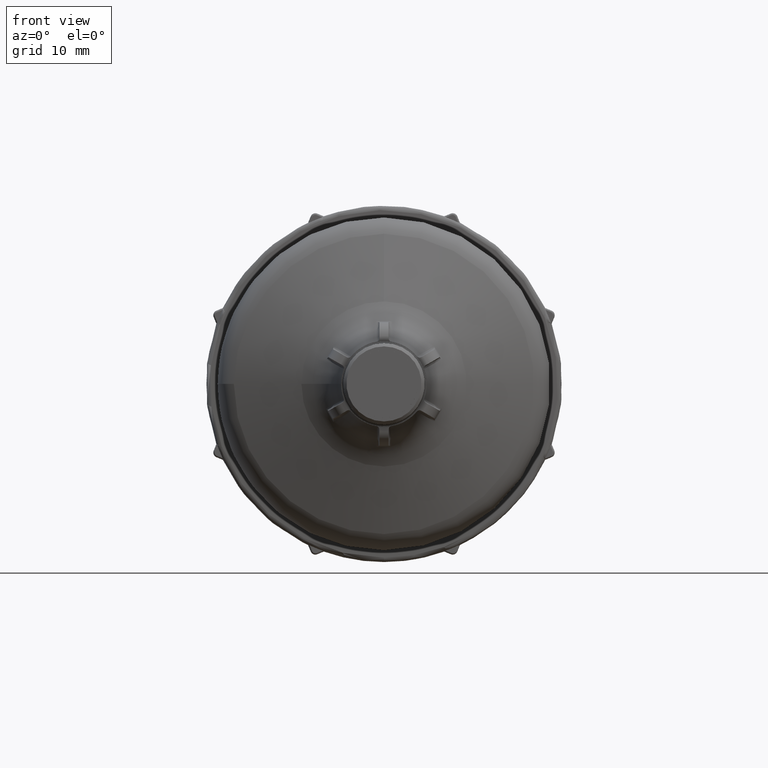
[diagram: clean part render]
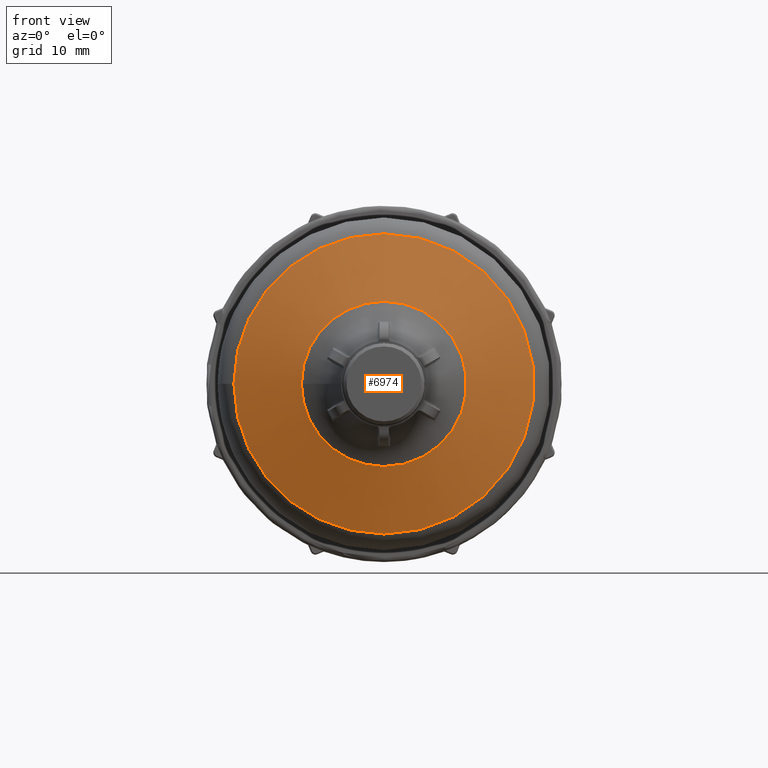
[diagram: same view with one face highlighted and labeled with its STEP entity id]
A machine part, front view. The second image highlights one B-rep face of the part: STEP entity #6974.
In plain terms, the highlighted conical surface has half-angle 70 deg.
Its self-contained STEP definition (entity closure, byte-faithful):
#860=LINE('',#15619,#1152);
#1152=VECTOR('',#9187,18.848939570023);
#1171=CONICAL_SURFACE('',#7626,18.848939570023,1.22173047639603);
#1918=FACE_OUTER_BOUND('',#2320,.T.);
#2320=EDGE_LOOP('',(#6379,#6380,#6381,#6382,#6383,#6384,#6385,#6386));
#2667=CIRCLE('',#7554,13.3797985667433);
#2668=CIRCLE('',#7555,13.3797985667433);
#2669=CIRCLE('',#7556,13.3797985667433);
#2706=CIRCLE('',#7627,24.3180805733027);
#2707=CIRCLE('',#7628,24.3180805733027);
#2708=CIRCLE('',#7629,24.3180805733027);
#3273=VERTEX_POINT('',#14416);
#3274=VERTEX_POINT('',#14418);
#3275=VERTEX_POINT('',#14420);
#3374=VERTEX_POINT('',#15614);
#3375=VERTEX_POINT('',#15615);
#3376=VERTEX_POINT('',#15617);
#4236=EDGE_CURVE('',#3274,#3273,#2667,.T.);
#4237=EDGE_CURVE('',#3275,#3274,#2668,.T.);
#4238=EDGE_CURVE('',#3273,#3275,#2669,.T.);
#4383=EDGE_CURVE('',#3374,#3375,#2706,.T.);
#4384=EDGE_CURVE('',#3376,#3374,#2707,.T.);
#4385=EDGE_CURVE('',#3376,#3275,#860,.T.);
#4386=EDGE_CURVE('',#3375,#3376,#2708,.T.);
#6379=ORIENTED_EDGE('',*,*,#4383,.F.);
#6380=ORIENTED_EDGE('',*,*,#4384,.F.);
#6381=ORIENTED_EDGE('',*,*,#4385,.T.);
#6382=ORIENTED_EDGE('',*,*,#4237,.T.);
#6383=ORIENTED_EDGE('',*,*,#4236,.T.);
#6384=ORIENTED_EDGE('',*,*,#4238,.T.);
#6385=ORIENTED_EDGE('',*,*,#4385,.F.);
#6386=ORIENTED_EDGE('',*,*,#4386,.F.);
#6974=ADVANCED_FACE('',(#1918),#1171,.T.);
#7554=AXIS2_PLACEMENT_3D('',#14419,#9009,#9010);
#7555=AXIS2_PLACEMENT_3D('',#14421,#9011,#9012);
#7556=AXIS2_PLACEMENT_3D('',#14422,#9013,#9014);
#7626=AXIS2_PLACEMENT_3D('',#15613,#9181,#9182);
#7627=AXIS2_PLACEMENT_3D('',#15616,#9183,#9184);
#7628=AXIS2_PLACEMENT_3D('',#15618,#9185,#9186);
#7629=AXIS2_PLACEMENT_3D('',#15620,#9188,#9189);
#9009=DIRECTION('center_axis',(-3.67702306362359E-17,1.,2.31725584917124E-17));
#9010=DIRECTION('ref_axis',(1.60944727143586E-33,6.43682180325407E-19,-1.));
#9011=DIRECTION('center_axis',(-3.67702306362359E-17,1.,2.31725584917124E-17));
#9012=DIRECTION('ref_axis',(1.60944727143586E-33,6.43682180325407E-19,-1.));
#9013=DIRECTION('center_axis',(-3.67702306362359E-17,1.,2.31725584917124E-17));
#9014=DIRECTION('ref_axis',(1.60944727143586E-33,6.43682180325407E-19,-1.));
#9181=DIRECTION('center_axis',(-3.67702306362359E-17,1.,2.31725584917124E-17));
#9182=DIRECTION('ref_axis',(1.60944727143586E-33,6.43682180325408E-19,-1.));
#9183=DIRECTION('center_axis',(-3.67702306362359E-17,1.,2.31725584917124E-17));
#9184=DIRECTION('ref_axis',(1.60944727143586E-33,6.43682180325412E-19,-1.));
#9185=DIRECTION('center_axis',(-3.67702306362359E-17,1.,2.31725584917124E-17));
#9186=DIRECTION('ref_axis',(1.60944727143586E-33,6.43682180325412E-19,-1.));
#9187=DIRECTION('',(-1.02502996470462E-16,-0.342020143325667,-0.939692620785909));
#9188=DIRECTION('center_axis',(-3.67702306362359E-17,1.,2.31725584917124E-17));
#9189=DIRECTION('ref_axis',(1.60944727143586E-33,6.43682180325412E-19,-1.));
#14416=CARTESIAN_POINT('',(-13.3797985667433,-77.4530737921409,-4.51683254780781E-16));
#14418=CARTESIAN_POINT('',(2.84796738682241E-15,-77.4530737921409,-13.3797985667433));
#14419=CARTESIAN_POINT('Origin',(2.84796738682241E-15,-77.4530737921409,
-2.09023600358064E-15));
#14420=CARTESIAN_POINT('',(4.48652013562226E-15,-77.4530737921409,13.3797985667433));
#14421=CARTESIAN_POINT('Origin',(2.84796738682241E-15,-77.4530737921409,
-2.09023600358064E-15));
#14422=CARTESIAN_POINT('Origin',(2.84796738682241E-15,-77.4530737921409,
-2.09023600358064E-15));
#15613=CARTESIAN_POINT('Origin',(2.77477239906793E-15,-75.4624692599423,
-2.0441086036244E-15));
#15614=CARTESIAN_POINT('',(2.70157741131345E-15,-73.4718647277437,-24.3180805733027));
#15615=CARTESIAN_POINT('',(-24.3180805733027,-73.4718647277437,9.80124749882109E-16));
#15616=CARTESIAN_POINT('Origin',(2.70157741131345E-15,-73.4718647277437,
-1.99798120366816E-15));
#15617=CARTESIAN_POINT('',(5.67968336486372E-15,-73.4718647277437,24.3180805733028));
#15618=CARTESIAN_POINT('Origin',(2.70157741131345E-15,-73.4718647277437,
-1.99798120366816E-15));
#15619=CARTESIAN_POINT('',(5.08310175024299E-15,-75.4624692599423,18.848939570023));
#15620=CARTESIAN_POINT('Origin',(2.70157741131345E-15,-73.4718647277437,
-1.99798120366816E-15));